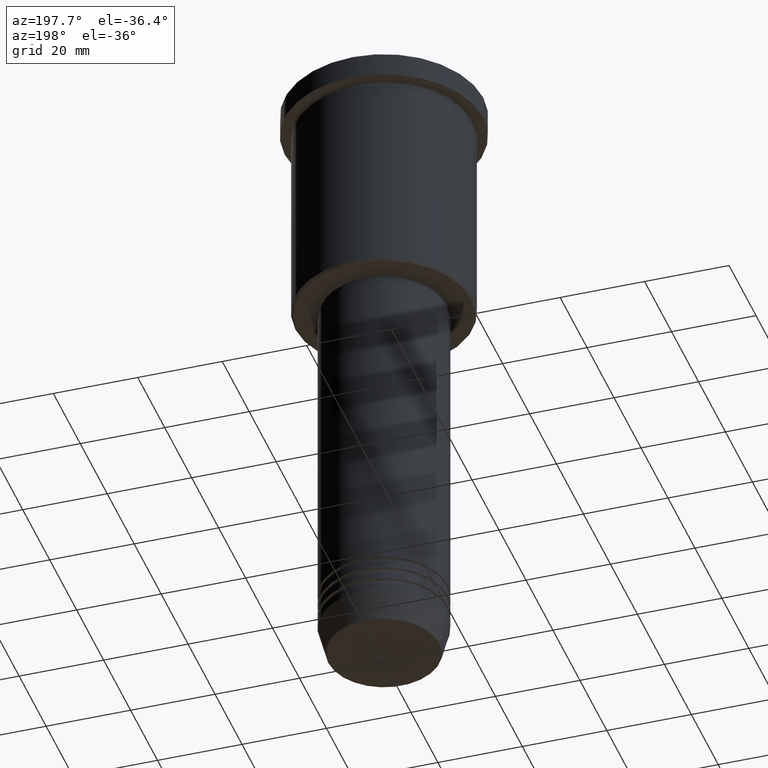
[diagram: clean part render]
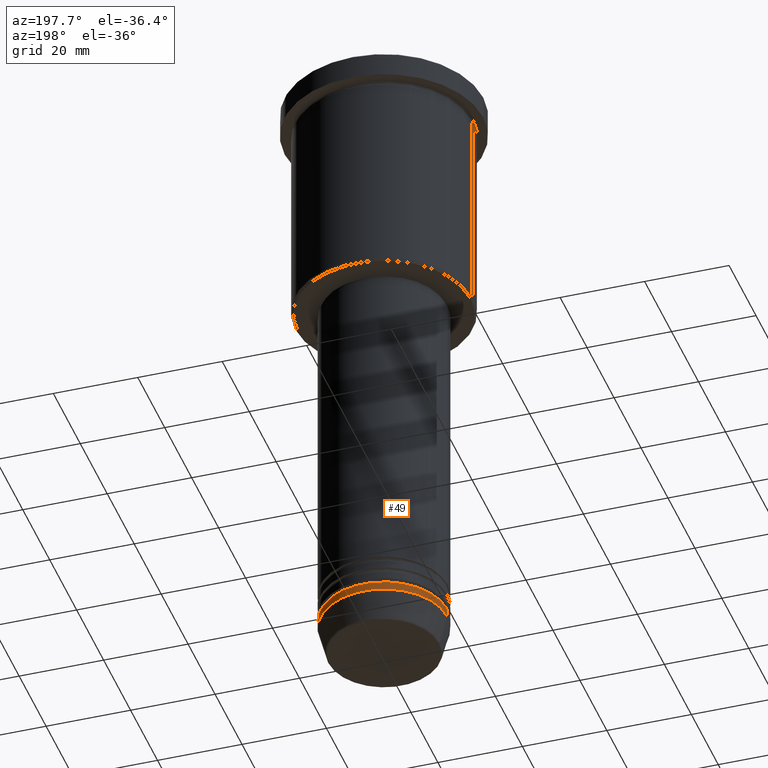
[diagram: same view with one face highlighted and labeled with its STEP entity id]
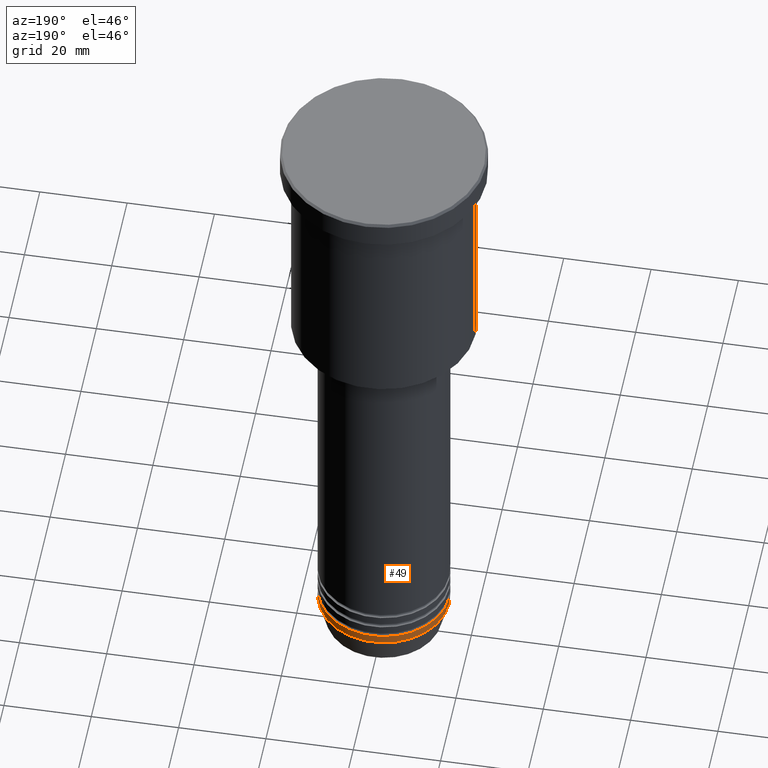
[diagram: same view with one face highlighted and labeled with its STEP entity id]
A machine part, auxiliary view. The second image highlights one B-rep face of the part: STEP entity #49.
A second angle (auxiliary view) of the same face is appended — the face is thin or edge-on in the first view.
In plain terms, the highlighted cylindrical surface (partial cylindrical patch) has radius 15 mm, axis along (-0, -0, 1).
Its self-contained STEP definition (entity closure, byte-faithful):
#49 = ADVANCED_FACE ( 'NONE', ( #763 ), #294, .T. ) ;
#67 = VERTEX_POINT ( 'NONE', #775 ) ;
#145 = CARTESIAN_POINT ( 'NONE',  ( 15.00000000000000000, 0.000000000000000000, -142.0000000000000284 ) ) ;
#153 = LINE ( 'NONE', #1052, #652 ) ;
#182 = VERTEX_POINT ( 'NONE', #688 ) ;
#188 = CARTESIAN_POINT ( 'NONE',  ( 0.000000000000000000, 0.000000000000000000, 0.000000000000000000 ) ) ;
#213 = DIRECTION ( 'NONE',  ( -0.000000000000000000, -0.000000000000000000, 1.000000000000000000 ) ) ;
#219 = DIRECTION ( 'NONE',  ( -0.000000000000000000, -0.000000000000000000, 1.000000000000000000 ) ) ;
#268 = VERTEX_POINT ( 'NONE', #145 ) ;
#293 = EDGE_CURVE ( 'NONE', #67, #182, #153, .T. ) ;
#294 = CYLINDRICAL_SURFACE ( 'NONE', #569, 15.00000000000000000 ) ;
#313 = VERTEX_POINT ( 'NONE', #1082 ) ;
#357 = ORIENTED_EDGE ( 'NONE', *, *, #1012, .F. ) ;
#359 = LINE ( 'NONE', #819, #811 ) ;
#376 = ORIENTED_EDGE ( 'NONE', *, *, #923, .T. ) ;
#417 = ORIENTED_EDGE ( 'NONE', *, *, #1143, .F. ) ;
#450 = DIRECTION ( 'NONE',  ( -0.000000000000000000, -0.000000000000000000, 1.000000000000000000 ) ) ;
#487 = CIRCLE ( 'NONE', #1016, 15.00000000000000000 ) ;
#511 = ORIENTED_EDGE ( 'NONE', *, *, #293, .T. ) ;
#530 = DIRECTION ( 'NONE',  ( 1.000000000000000000, 0.000000000000000000, 0.000000000000000000 ) ) ;
#541 = AXIS2_PLACEMENT_3D ( 'NONE', #622, #993, #530 ) ;
#569 = AXIS2_PLACEMENT_3D ( 'NONE', #188, #213, #949 ) ;
#622 = CARTESIAN_POINT ( 'NONE',  ( 0.000000000000000000, 0.000000000000000000, -144.0000000000000284 ) ) ;
#652 = VECTOR ( 'NONE', #219, 1000.000000000000000 ) ;
#656 = DIRECTION ( 'NONE',  ( -0.000000000000000000, -0.000000000000000000, 1.000000000000000000 ) ) ;
#688 = CARTESIAN_POINT ( 'NONE',  ( -15.00000000000000000, 1.836970198721029589E-15, -142.0000000000000284 ) ) ;
#757 = DIRECTION ( 'NONE',  ( 1.000000000000000000, 0.000000000000000000, 0.000000000000000000 ) ) ;
#763 = FACE_OUTER_BOUND ( 'NONE', #1146, .T. ) ;
#775 = CARTESIAN_POINT ( 'NONE',  ( -15.00000000000000000, 1.836970198721029589E-15, -144.0000000000000284 ) ) ;
#795 = CIRCLE ( 'NONE', #541, 15.00000000000000000 ) ;
#811 = VECTOR ( 'NONE', #450, 1000.000000000000000 ) ;
#819 = CARTESIAN_POINT ( 'NONE',  ( 15.00000000000000000, 0.000000000000000000, 0.000000000000000000 ) ) ;
#923 = EDGE_CURVE ( 'NONE', #313, #67, #795, .T. ) ;
#949 = DIRECTION ( 'NONE',  ( 1.000000000000000000, 0.000000000000000000, 0.000000000000000000 ) ) ;
#993 = DIRECTION ( 'NONE',  ( -0.000000000000000000, -0.000000000000000000, 1.000000000000000000 ) ) ;
#1012 = EDGE_CURVE ( 'NONE', #313, #268, #359, .T. ) ;
#1016 = AXIS2_PLACEMENT_3D ( 'NONE', #1117, #656, #757 ) ;
#1052 = CARTESIAN_POINT ( 'NONE',  ( -15.00000000000000000, 1.836970198721029589E-15, 0.000000000000000000 ) ) ;
#1082 = CARTESIAN_POINT ( 'NONE',  ( 15.00000000000000000, 0.000000000000000000, -144.0000000000000284 ) ) ;
#1117 = CARTESIAN_POINT ( 'NONE',  ( 0.000000000000000000, 0.000000000000000000, -142.0000000000000284 ) ) ;
#1143 = EDGE_CURVE ( 'NONE', #268, #182, #487, .T. ) ;
#1146 = EDGE_LOOP ( 'NONE', ( #376, #511, #417, #357 ) ) ;